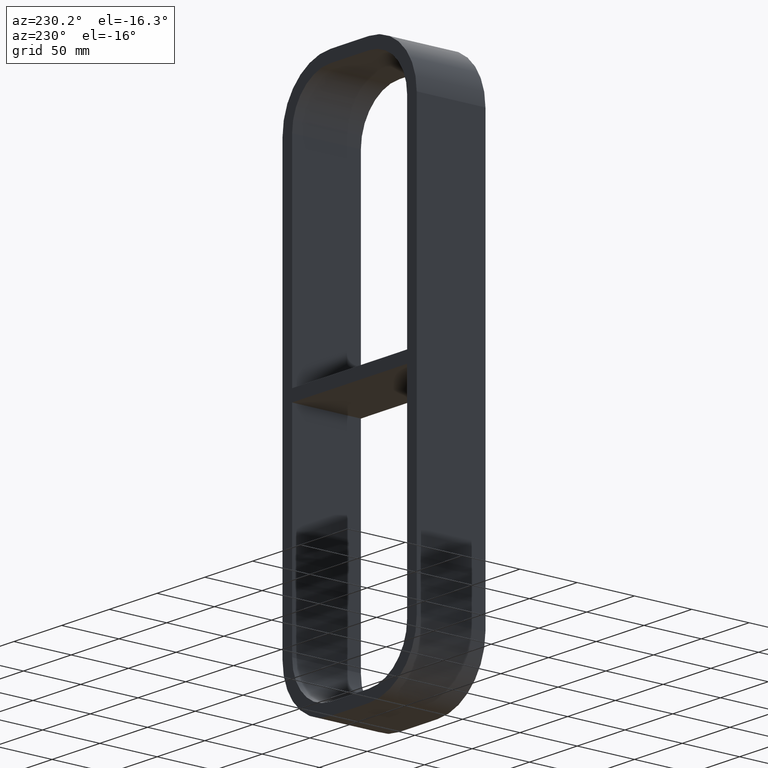
[diagram: clean part render]
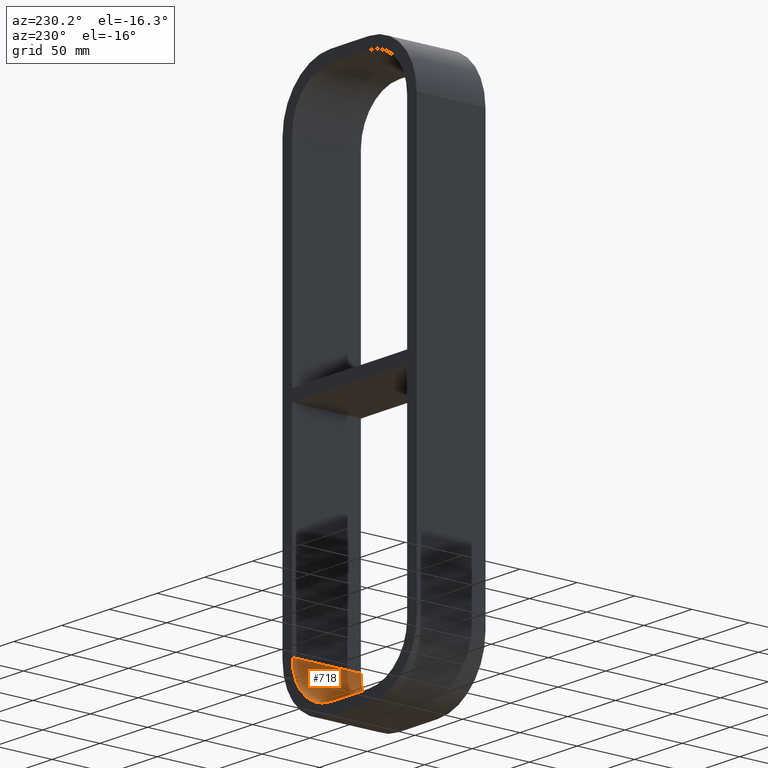
[diagram: same view with one face highlighted and labeled with its STEP entity id]
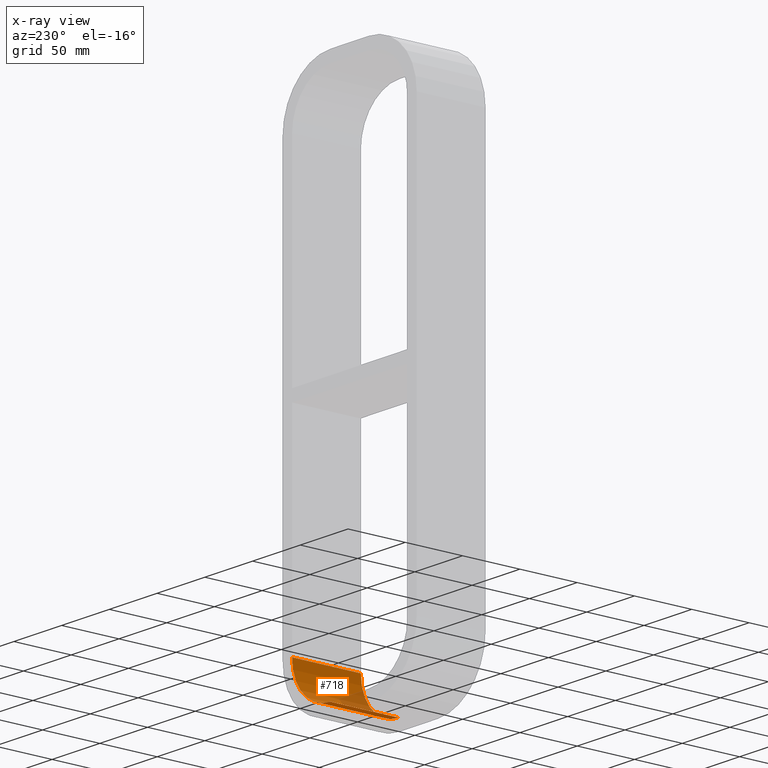
[diagram: x-ray of the same camera — body ghosted, the highlighted face saturated]
A machine part, auxiliary view. The second image highlights one B-rep face of the part: STEP entity #718.
The next image is the same camera in x-ray: the body ghosted, the highlighted face saturated — about 13% of this face is hidden behind the body in this view.
In plain terms, the highlighted cylindrical surface (partial cylindrical patch) has radius 40 mm, axis along (0, -1, 0).
Its self-contained STEP definition (entity closure, byte-faithful):
#185=CARTESIAN_POINT('',(60.25,57.0,-182.99999999999997));
#186=VERTEX_POINT('',#185);
#193=CARTESIAN_POINT('',(60.25,-3.0,-182.99999999999997));
#194=VERTEX_POINT('',#193);
#195=CARTESIAN_POINT('',(60.25,-3.0,-182.99999999999997));
#196=DIRECTION('',(0.0,1.0,0.0));
#197=VECTOR('',#196,60.0);
#198=LINE('',#195,#197);
#199=EDGE_CURVE('',#194,#186,#198,.T.);
#379=CARTESIAN_POINT('',(20.250000000000004,-3.0,-222.99999999999997));
#380=VERTEX_POINT('',#379);
#381=CARTESIAN_POINT('',(20.250000000000004,-3.0,-182.99999999999997));
#382=DIRECTION('',(0.0,-1.0,0.0));
#383=DIRECTION('',(0.707106781186547,0.0,-0.707106781186547));
#384=AXIS2_PLACEMENT_3D('',#381,#382,#383);
#385=CIRCLE('',#384,39.999999999999993);
#386=EDGE_CURVE('',#380,#194,#385,.T.);
#684=CARTESIAN_POINT('',(20.250000000000004,57.0,-222.99999999999997));
#685=VERTEX_POINT('',#684);
#686=CARTESIAN_POINT('',(20.250000000000004,57.0,-222.99999999999997));
#687=DIRECTION('',(0.0,-1.0,0.0));
#688=VECTOR('',#687,60.0);
#689=LINE('',#686,#688);
#690=EDGE_CURVE('',#685,#380,#689,.T.);
#701=CARTESIAN_POINT('',(20.250000000000004,0.0,-182.99999999999997));
#702=DIRECTION('',(0.0,-1.0,0.0));
#703=DIRECTION('',(0.707106781186547,0.0,-0.707106781186547));
#704=AXIS2_PLACEMENT_3D('',#701,#702,#703);
#705=CYLINDRICAL_SURFACE('',#704,40.0);
#706=CARTESIAN_POINT('',(20.250000000000004,57.0,-182.99999999999997));
#707=DIRECTION('',(0.0,1.0,0.0));
#708=DIRECTION('',(0.707106781186547,0.0,-0.707106781186547));
#709=AXIS2_PLACEMENT_3D('',#706,#707,#708);
#710=CIRCLE('',#709,39.999999999999993);
#711=EDGE_CURVE('',#186,#685,#710,.T.);
#712=ORIENTED_EDGE('',*,*,#711,.T.);
#713=ORIENTED_EDGE('',*,*,#690,.T.);
#714=ORIENTED_EDGE('',*,*,#386,.T.);
#715=ORIENTED_EDGE('',*,*,#199,.T.);
#716=EDGE_LOOP('',(#712,#713,#714,#715));
#717=FACE_OUTER_BOUND('',#716,.T.);
#718=ADVANCED_FACE('',(#717),#705,.F.);